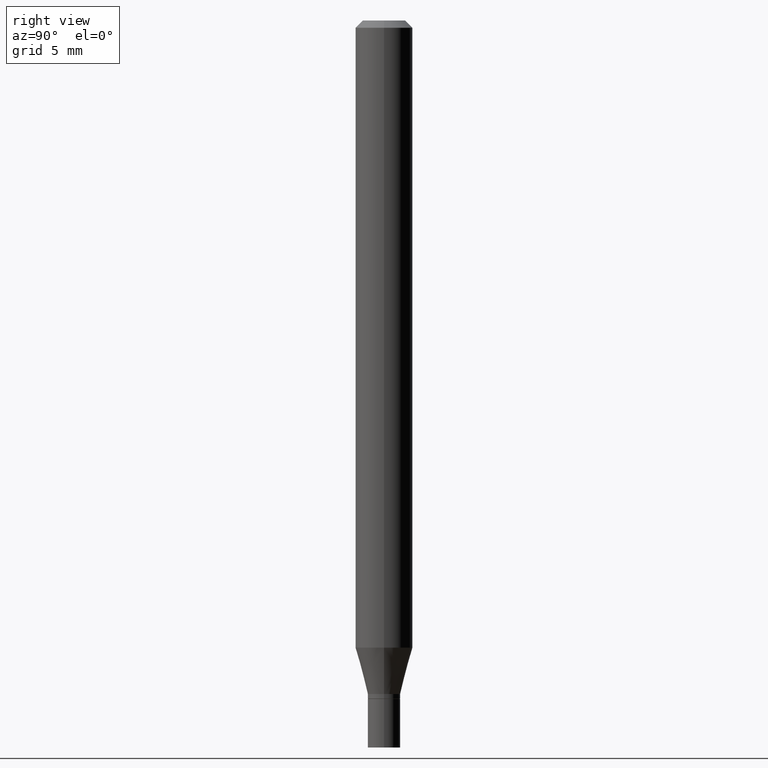
[diagram: clean part render]
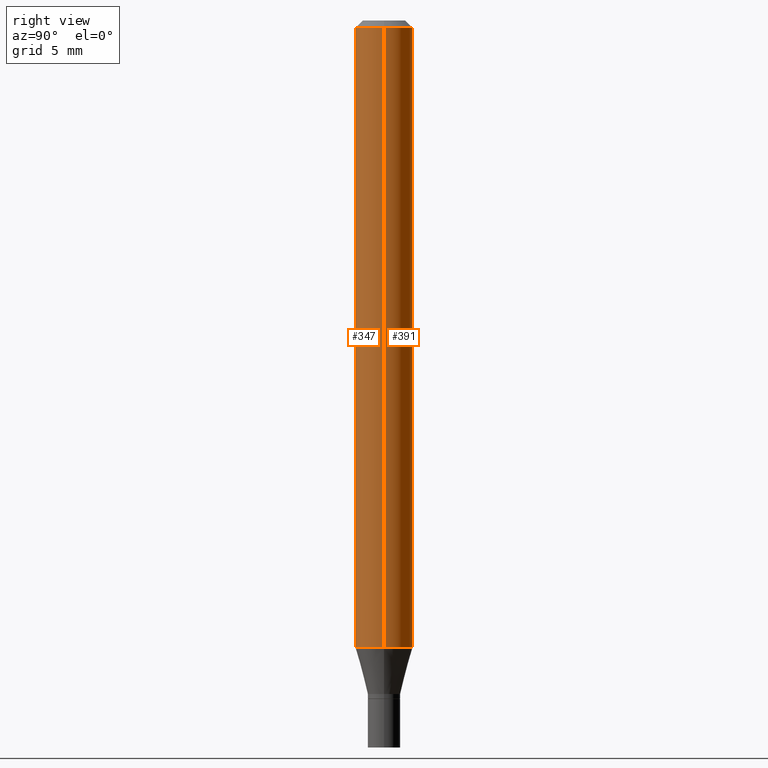
[diagram: same view with one multi-face feature highlighted, each face labeled with its STEP entity id]
A machine part, right view. The highlighted faces form ONE feature: a constant-radius fillet chain: 2 tangent blend faces with common blend radius 1.4999 mm. The faces share edges in the B-rep.
Their STEP definitions:
[1] entity #391 (Cylinder):
#59 = CIRCLE ( 'NONE', #184, 0.05904999999999999832 ) ;
#60 = CARTESIAN_POINT ( 'NONE',  ( 0.05904999999999999832, -4.647161662000212105E-16, -0.01499999999999999944 ) ) ;
#73 = CARTESIAN_POINT ( 'NONE',  ( 0.05904999999999999832, -4.930528539367636810E-15, -1.294059499326237761 ) ) ;
#83 = VERTEX_POINT ( 'NONE', #224 ) ;
#92 = VERTEX_POINT ( 'NONE', #73 ) ;
#98 = CARTESIAN_POINT ( 'NONE',  ( 0.000000000000000000, 0.000000000000000000, 0.000000000000000000 ) ) ;
#123 = DIRECTION ( 'NONE',  ( 1.000000000000000000, -6.982962677686273021E-15, 0.000000000000000000 ) ) ;
#131 = DIRECTION ( 'NONE',  ( -2.445468806185136597E-29, 3.491481338843145583E-15, 1.000000000000000000 ) ) ;
#138 = CIRCLE ( 'NONE', #318, 0.05904999999999999832 ) ;
#152 = CARTESIAN_POINT ( 'NONE',  ( 3.668203209277705088E-31, -5.237222008264718399E-17, -0.01499999999999999944 ) ) ;
#158 = CARTESIAN_POINT ( 'NONE',  ( -0.05904999999999999832, 4.195754854663391478E-16, -2.904631170795521892E-30 ) ) ;
#175 = CARTESIAN_POINT ( 'NONE',  ( 0.05904999999999999832, -4.123439461173740327E-16, 2.879382386107500220E-30 ) ) ;
#179 = EDGE_CURVE ( 'NONE', #92, #441, #188, .T. ) ;
#184 = AXIS2_PLACEMENT_3D ( 'NONE', #340, #234, #123 ) ;
#188 = LINE ( 'NONE', #175, #365 ) ;
#204 = EDGE_CURVE ( 'NONE', #92, #83, #59, .T. ) ;
#206 = CARTESIAN_POINT ( 'NONE',  ( -0.05904999999999999832, -1.865702921200115583E-15, -0.01499999999999999944 ) ) ;
#224 = CARTESIAN_POINT ( 'NONE',  ( -0.05904999999999999832, -4.098609107783923974E-15, -1.294059499326237761 ) ) ;
#234 = DIRECTION ( 'NONE',  ( -2.445468806185136597E-29, 3.491481338843145583E-15, 1.000000000000000000 ) ) ;
#242 = DIRECTION ( 'NONE',  ( 1.000000000000000000, -6.982962677686266711E-15, 4.876176775795936353E-29 ) ) ;
#248 = AXIS2_PLACEMENT_3D ( 'NONE', #98, #131, #242 ) ;
#272 = EDGE_CURVE ( 'NONE', #441, #385, #138, .T. ) ;
#285 = EDGE_CURVE ( 'NONE', #83, #385, #368, .T. ) ;
#302 = DIRECTION ( 'NONE',  ( -2.445468806185136597E-29, 3.491481338843145583E-15, 1.000000000000000000 ) ) ;
#315 = ORIENTED_EDGE ( 'NONE', *, *, #204, .T. ) ;
#318 = AXIS2_PLACEMENT_3D ( 'NONE', #152, #302, #373 ) ;
#321 = DIRECTION ( 'NONE',  ( -2.445468806185136877E-29, 3.491481338843145188E-15, 1.000000000000000000 ) ) ;
#333 = ORIENTED_EDGE ( 'NONE', *, *, #285, .T. ) ;
#340 = CARTESIAN_POINT ( 'NONE',  ( 3.164582138949869656E-29, -4.518184593250262678E-15, -1.294059499326237761 ) ) ;
#346 = CYLINDRICAL_SURFACE ( 'NONE', #248, 0.05904999999999999832 ) ;
#365 = VECTOR ( 'NONE', #321, 39.37007874015748143 ) ;
#368 = LINE ( 'NONE', #158, #393 ) ;
#371 = ORIENTED_EDGE ( 'NONE', *, *, #272, .F. ) ;
#373 = DIRECTION ( 'NONE',  ( 1.000000000000000000, -6.982962677686266711E-15, 0.000000000000000000 ) ) ;
#385 = VERTEX_POINT ( 'NONE', #206 ) ;
#387 = EDGE_LOOP ( 'NONE', ( #315, #333, #371, #459 ) ) ;
#391 = ADVANCED_FACE ( 'NONE', ( #465 ), #346, .T. ) ;
#393 = VECTOR ( 'NONE', #413, 39.37007874015748143 ) ;
#413 = DIRECTION ( 'NONE',  ( -2.445468806185136877E-29, 3.491481338843145188E-15, 1.000000000000000000 ) ) ;
#441 = VERTEX_POINT ( 'NONE', #60 ) ;
#459 = ORIENTED_EDGE ( 'NONE', *, *, #179, .F. ) ;
#465 = FACE_OUTER_BOUND ( 'NONE', #387, .T. ) ;
[2] entity #347 (Cylinder):
#3 = DIRECTION ( 'NONE',  ( 1.000000000000000000, -6.982962677686273021E-15, 0.000000000000000000 ) ) ;
#16 = CYLINDRICAL_SURFACE ( 'NONE', #430, 0.05904999999999999832 ) ;
#19 = DIRECTION ( 'NONE',  ( -2.445468806185136597E-29, 3.491481338843145583E-15, 1.000000000000000000 ) ) ;
#28 = ORIENTED_EDGE ( 'NONE', *, *, #179, .T. ) ;
#50 = DIRECTION ( 'NONE',  ( 1.000000000000000000, -6.982962677686266711E-15, 0.000000000000000000 ) ) ;
#60 = CARTESIAN_POINT ( 'NONE',  ( 0.05904999999999999832, -4.647161662000212105E-16, -0.01499999999999999944 ) ) ;
#63 = EDGE_CURVE ( 'NONE', #83, #92, #232, .T. ) ;
#65 = ORIENTED_EDGE ( 'NONE', *, *, #63, .T. ) ;
#73 = CARTESIAN_POINT ( 'NONE',  ( 0.05904999999999999832, -4.930528539367636810E-15, -1.294059499326237761 ) ) ;
#83 = VERTEX_POINT ( 'NONE', #224 ) ;
#92 = VERTEX_POINT ( 'NONE', #73 ) ;
#124 = CIRCLE ( 'NONE', #329, 0.05904999999999999832 ) ;
#158 = CARTESIAN_POINT ( 'NONE',  ( -0.05904999999999999832, 4.195754854663391478E-16, -2.904631170795521892E-30 ) ) ;
#175 = CARTESIAN_POINT ( 'NONE',  ( 0.05904999999999999832, -4.123439461173740327E-16, 2.879382386107500220E-30 ) ) ;
#179 = EDGE_CURVE ( 'NONE', #92, #441, #188, .T. ) ;
#188 = LINE ( 'NONE', #175, #365 ) ;
#206 = CARTESIAN_POINT ( 'NONE',  ( -0.05904999999999999832, -1.865702921200115583E-15, -0.01499999999999999944 ) ) ;
#224 = CARTESIAN_POINT ( 'NONE',  ( -0.05904999999999999832, -4.098609107783923974E-15, -1.294059499326237761 ) ) ;
#232 = CIRCLE ( 'NONE', #289, 0.05904999999999999832 ) ;
#235 = DIRECTION ( 'NONE',  ( 1.000000000000000000, -6.982962677686266711E-15, 4.876176775795936353E-29 ) ) ;
#254 = EDGE_LOOP ( 'NONE', ( #424, #65, #28, #384 ) ) ;
#266 = CARTESIAN_POINT ( 'NONE',  ( 3.668203209277705088E-31, -5.237222008264718399E-17, -0.01499999999999999944 ) ) ;
#269 = FACE_OUTER_BOUND ( 'NONE', #254, .T. ) ;
#285 = EDGE_CURVE ( 'NONE', #83, #385, #368, .T. ) ;
#289 = AXIS2_PLACEMENT_3D ( 'NONE', #294, #330, #3 ) ;
#294 = CARTESIAN_POINT ( 'NONE',  ( 3.164582138949869656E-29, -4.518184593250262678E-15, -1.294059499326237761 ) ) ;
#301 = CARTESIAN_POINT ( 'NONE',  ( 0.000000000000000000, 0.000000000000000000, 0.000000000000000000 ) ) ;
#303 = EDGE_CURVE ( 'NONE', #385, #441, #124, .T. ) ;
#321 = DIRECTION ( 'NONE',  ( -2.445468806185136877E-29, 3.491481338843145188E-15, 1.000000000000000000 ) ) ;
#329 = AXIS2_PLACEMENT_3D ( 'NONE', #266, #455, #50 ) ;
#330 = DIRECTION ( 'NONE',  ( -2.445468806185136597E-29, 3.491481338843145583E-15, 1.000000000000000000 ) ) ;
#347 = ADVANCED_FACE ( 'NONE', ( #269 ), #16, .T. ) ;
#365 = VECTOR ( 'NONE', #321, 39.37007874015748143 ) ;
#368 = LINE ( 'NONE', #158, #393 ) ;
#384 = ORIENTED_EDGE ( 'NONE', *, *, #303, .F. ) ;
#385 = VERTEX_POINT ( 'NONE', #206 ) ;
#393 = VECTOR ( 'NONE', #413, 39.37007874015748143 ) ;
#413 = DIRECTION ( 'NONE',  ( -2.445468806185136877E-29, 3.491481338843145188E-15, 1.000000000000000000 ) ) ;
#424 = ORIENTED_EDGE ( 'NONE', *, *, #285, .F. ) ;
#430 = AXIS2_PLACEMENT_3D ( 'NONE', #301, #19, #235 ) ;
#441 = VERTEX_POINT ( 'NONE', #60 ) ;
#455 = DIRECTION ( 'NONE',  ( -2.445468806185136597E-29, 3.491481338843145583E-15, 1.000000000000000000 ) ) ;